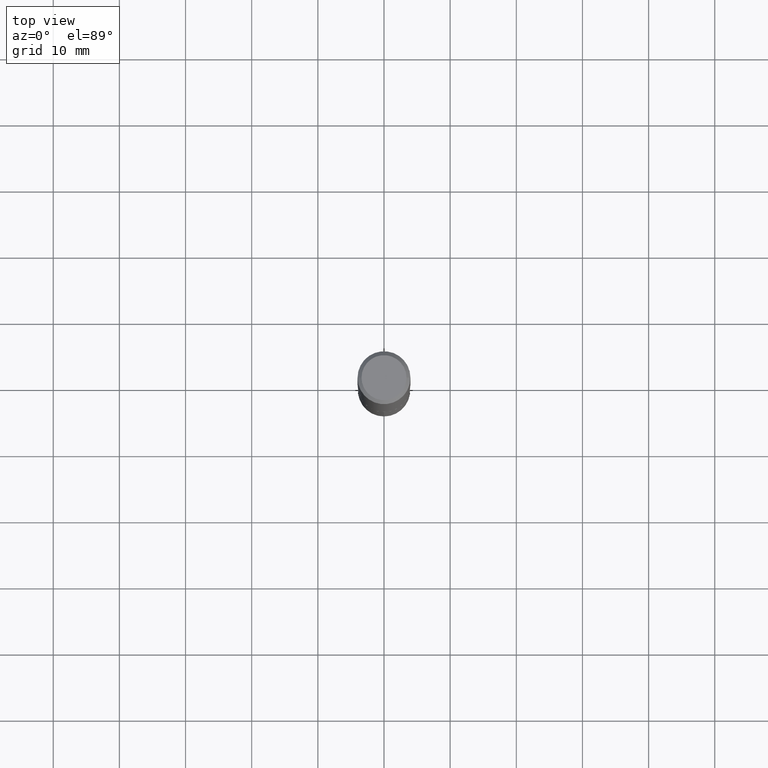
[diagram: clean part render]
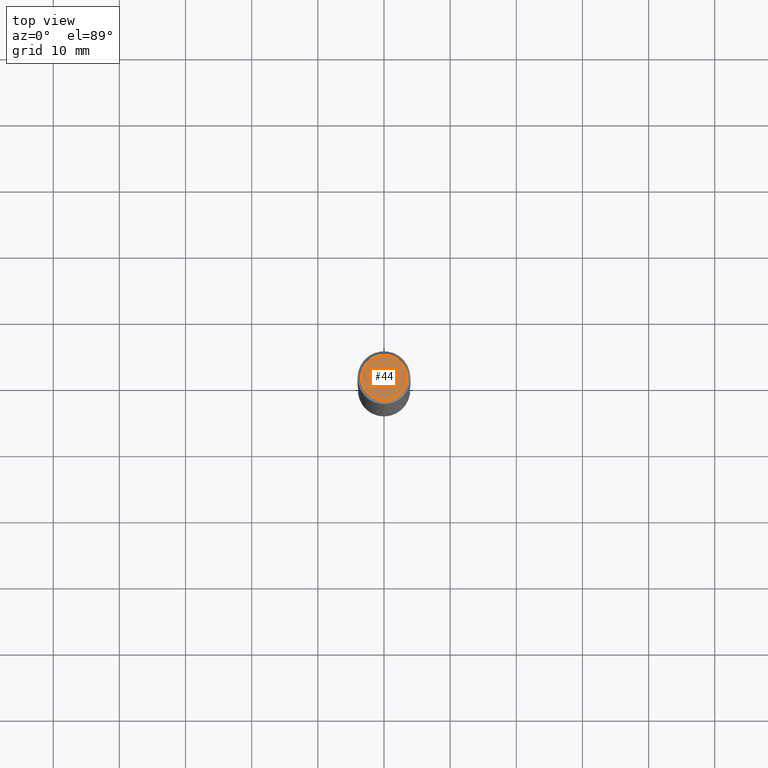
[diagram: same view with one face highlighted and labeled with its STEP entity id]
A machine part, top view. The second image highlights one B-rep face of the part: STEP entity #44.
In plain terms, the highlighted planar face has unit normal (0, -0, -1).
Its self-contained STEP definition (entity closure, byte-faithful):
#4 = DIRECTION ( 'NONE',  ( 2.438088387897960049E-29, -3.491481338843145188E-15, -1.000000000000000000 ) ) ;
#11 = CIRCLE ( 'NONE', #408, 0.1338749999999999940 ) ;
#20 = CARTESIAN_POINT ( 'NONE',  ( -1.002970424325032604E-46, 1.431975951230895391E-32, 4.101342130344482109E-18 ) ) ;
#44 = ADVANCED_FACE ( 'NONE', ( #101 ), #430, .F. ) ;
#46 = VERTEX_POINT ( 'NONE', #389 ) ;
#62 = CARTESIAN_POINT ( 'NONE',  ( -1.002970424325032604E-46, 1.431975951230895391E-32, 4.101342130344482109E-18 ) ) ;
#101 = FACE_OUTER_BOUND ( 'NONE', #301, .T. ) ;
#126 = ORIENTED_EDGE ( 'NONE', *, *, #388, .T. ) ;
#166 = DIRECTION ( 'NONE',  ( -2.445468806185136597E-29, 3.491481338843145583E-15, 1.000000000000000000 ) ) ;
#175 = CARTESIAN_POINT ( 'NONE',  ( -5.014852121625163022E-47, 7.159879756154476955E-33, 2.050671065172241055E-18 ) ) ;
#176 = CIRCLE ( 'NONE', #277, 0.1338749999999999940 ) ;
#192 = VERTEX_POINT ( 'NONE', #439 ) ;
#237 = DIRECTION ( 'NONE',  ( 1.000000000000000000, -6.982962677686266711E-15, 4.876170806578254279E-29 ) ) ;
#246 = DIRECTION ( 'NONE',  ( -1.000000000000000000, 6.982962677686265922E-15, -4.876176775795935793E-29 ) ) ;
#260 = AXIS2_PLACEMENT_3D ( 'NONE', #175, #4, #246 ) ;
#277 = AXIS2_PLACEMENT_3D ( 'NONE', #62, #166, #237 ) ;
#301 = EDGE_LOOP ( 'NONE', ( #126, #316 ) ) ;
#316 = ORIENTED_EDGE ( 'NONE', *, *, #428, .T. ) ;
#379 = DIRECTION ( 'NONE',  ( -2.445468806185136597E-29, 3.491481338843145583E-15, 1.000000000000000000 ) ) ;
#388 = EDGE_CURVE ( 'NONE', #46, #192, #11, .T. ) ;
#389 = CARTESIAN_POINT ( 'NONE',  ( -0.1338749999999999940, 9.760872517903331886E-16, 4.101342130337800673E-18 ) ) ;
#408 = AXIS2_PLACEMENT_3D ( 'NONE', #20, #379, #414 ) ;
#414 = DIRECTION ( 'NONE',  ( 1.000000000000000000, -6.982962677686266711E-15, 4.876170806578254279E-29 ) ) ;
#428 = EDGE_CURVE ( 'NONE', #192, #46, #176, .T. ) ;
#430 = PLANE ( 'NONE',  #260 ) ;
#439 = CARTESIAN_POINT ( 'NONE',  ( 0.1338749999999999940, -1.040731925365424925E-15, 4.101342130351390035E-18 ) ) ;